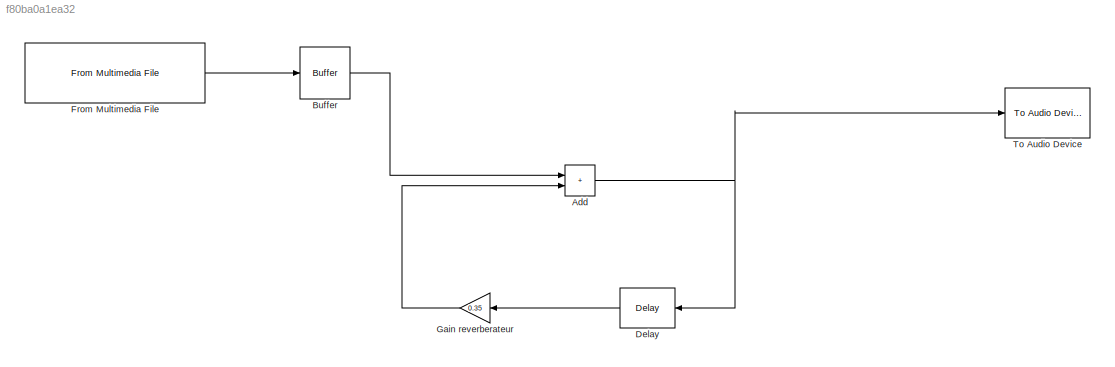
MODEL slx_f80ba0a1ea32
KIND model
CONFIG AbsTol = auto
CONFIG EnableMultiTasking = off
CONFIG FixedStep = auto
CONFIG MaxStep = auto
CONFIG MinStep = auto
CONFIG RelTol = 1e-3
CONFIG SampleTimeConstraint = Unconstrained
CONFIG Solver = VariableStepAuto
CONFIG SolverName = VariableStepAuto
CONFIG StartTime = 0.0
CONFIG StopTime = 50
BLOCK [Sum] Add
  IconShape = rectangular
  Ports = [2, 1]
BLOCK [Buffer] Buffer
  N = 24000
  OutputFrames = off
BLOCK [Delay] Delay
  DelayLength = 1
  DelayLengthUpperLimit = 5000
  InputPortMap = u0
  NameLocation = top
  Ports = [1, 1]
BLOCK [Reference] From Multimedia File  REF=dspvision/From Multimedia File
  Ports = [0, 1]
  SourceBlock = dspvision/From Multimedia File
  SourceProductBaseCode = DS,HW,VP
  SourceType = From Multimedia File
BLOCK [Gain] Gain reverberateur
  Gain = 0.35
  NameLocation = top
BLOCK [Reference] To Audio Device  REF=dspobslib/To Audio
Device
  Ports = [1]
  SourceBlock = dspobslib/To Audio\nDevice
  SourceProductBaseCode = DS
  SourceType = To Audio Device
NET Add:1 -> Delay:1, To Audio Device:1
LINE Buffer:1 -> Add:1
LINE Delay:1 -> Gain reverberateur:1
LINE From Multimedia File:1 -> Buffer:1
LINE Gain reverberateur:1 -> Add:2
note: NET lines group one-source signal fan-out (src -> all destinations, sorted); 1:1 wires keep LINE
